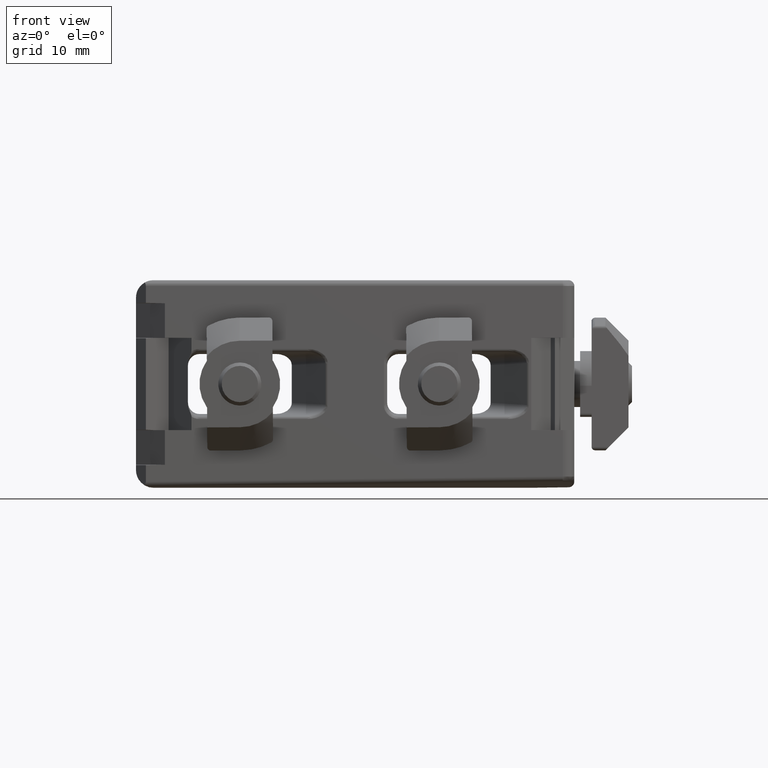
[diagram: clean part render]
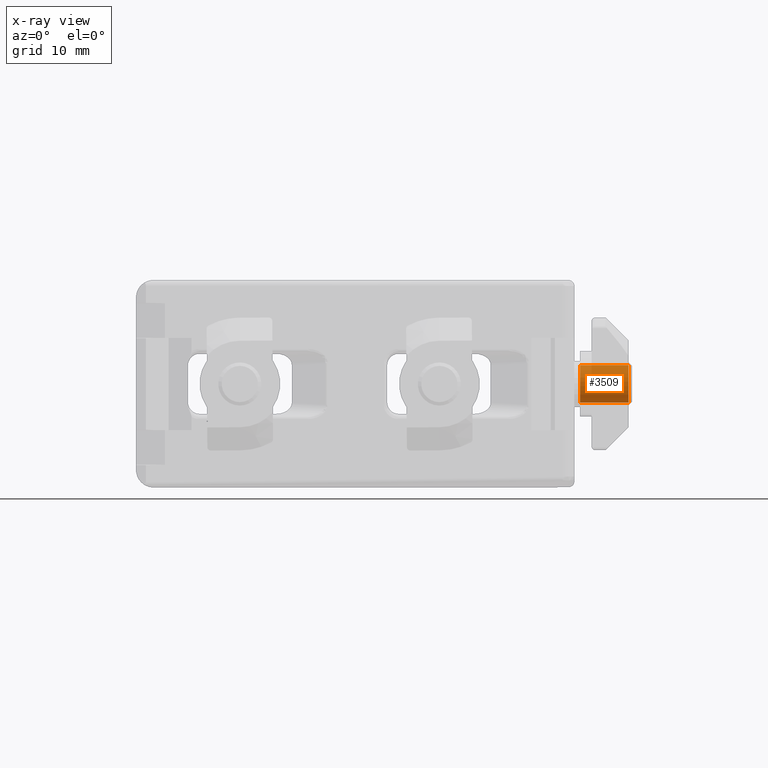
[diagram: x-ray — body ghosted, one internal face saturated and labeled with its STEP entity id]
A machine part, front view, then the same camera in x-ray: the body is ghosted and one INTERNAL B-rep face — a face not visible from any outside direction — is saturated and labeled: STEP entity #3509.
In plain terms, the highlighted cylindrical surface (bore or boss wall) has radius 1.621 mm, axis along (-1, -0, 0).
Its self-contained STEP definition (entity closure, byte-faithful):
#74=FACE_BOUND($,#1278,.T.);
#816=CYLINDRICAL_SURFACE($,#3812,1.621);
#1069=FACE_OUTER_BOUND($,#1277,.T.);
#1277=EDGE_LOOP($,(#3130));
#1278=EDGE_LOOP($,(#3131));
#1385=CIRCLE($,#3813,1.621);
#1386=CIRCLE($,#3814,1.621);
#1736=VERTEX_POINT($,#6710);
#1737=VERTEX_POINT($,#6712);
#2210=EDGE_CURVE($,#1736,#1736,#1385,.T.);
#2211=EDGE_CURVE($,#1737,#1737,#1386,.T.);
#3130=ORIENTED_EDGE($,*,*,#2210,.F.);
#3131=ORIENTED_EDGE($,*,*,#2211,.F.);
#3509=ADVANCED_FACE($,(#1069,#74),#816,.F.);
#3812=AXIS2_PLACEMENT_3D($,#6709,#4647,#4648);
#3813=AXIS2_PLACEMENT_3D($,#6711,#4649,#4650);
#3814=AXIS2_PLACEMENT_3D($,#6713,#4651,#4652);
#4647=DIRECTION('center_axis',(0.,0.,1.));
#4648=DIRECTION('ref_axis',(1.,-1.61907524424504E-015,0.));
#4649=DIRECTION('center_axis',(0.,0.,1.));
#4650=DIRECTION('ref_axis',(1.,-1.61907524424504E-015,0.));
#4651=DIRECTION('center_axis',(0.,0.,-1.));
#4652=DIRECTION('ref_axis',(1.,-1.61907524424504E-015,0.));
#6709=CARTESIAN_POINT('Origin',(0.,0.,-9.30697913072826));
#6710=CARTESIAN_POINT('',(-1.621,2.42600572477942E-015,0.));
#6711=CARTESIAN_POINT('Origin',(0.,0.,0.));
#6712=CARTESIAN_POINT('',(1.621,-2.62452097092121E-015,4.2));
#6713=CARTESIAN_POINT('Origin',(0.,0.,4.2));